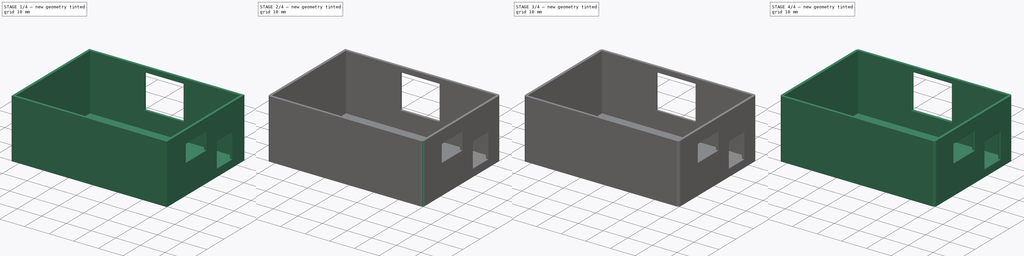
[diagram: build sequence overview — one tinted view per stage of 4, left to right]
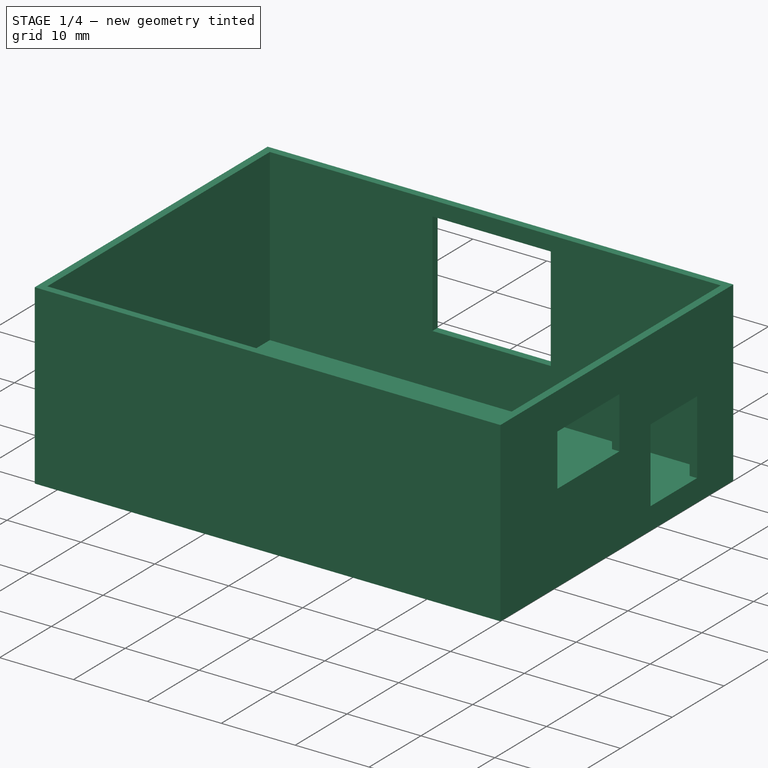
[diagram: stage 1 of 4 — iso view after this stage's code; geometry added in this stage tinted green]
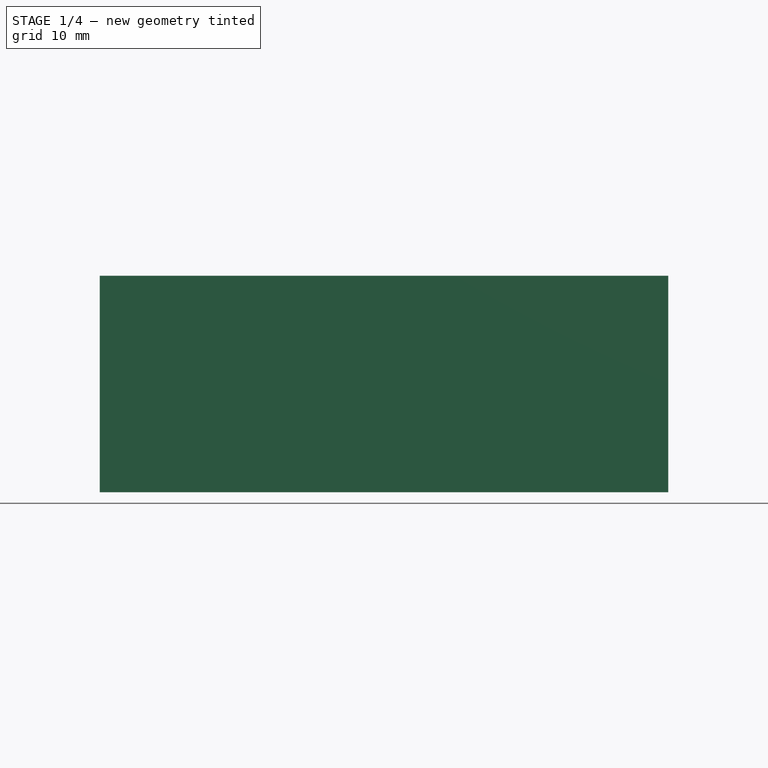
[diagram: stage 1 of 4 — front view after this stage's code; geometry added in this stage tinted green]
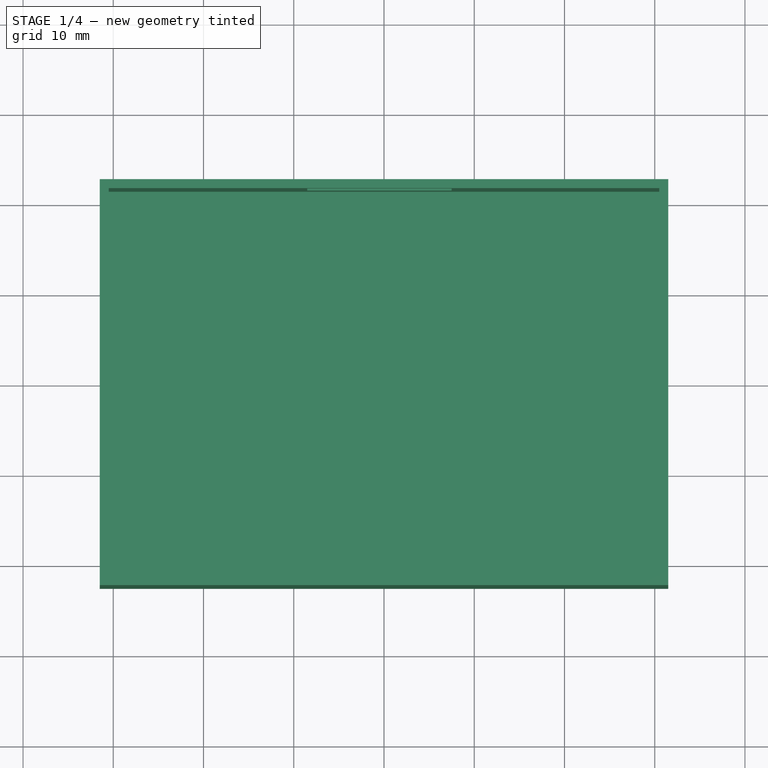
[diagram: stage 1 of 4 — top view after this stage's code; geometry added in this stage tinted green]
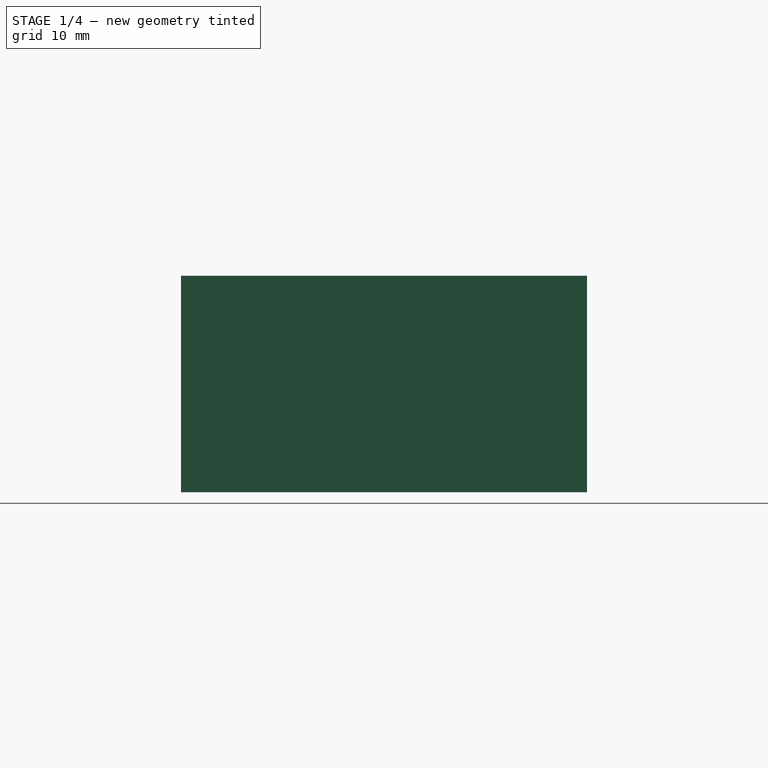
[diagram: stage 1 of 4 — right view after this stage's code; geometry added in this stage tinted green]
FCSTD DOCUMENT  (FreeCAD 0.19R24291 (Git))
Label: trigger2pulse_box
License: All rights reserved
LicenseURL: http://en.wikipedia.org/wiki/All_rights_reserved
objects: PartDesign::Fillet×10, Sketcher::SketchObject×4, PartDesign::Pocket×3, PartDesign::Pad×1, PartDesign::Body×1
note: 33 computed .brp shape members not serialized (recipe doc carries the construction recipe); baked Part::Feature solids carry a one-line shape summary decoded from their .brp

FEATURE [Sketcher::SketchObject] Sketch
  FullyConstrained = true
  MapMode = 5
  Support = -> [XY_Plane]
  sketch-geometry (4):
    g0: LineSegment StartX=-31.5 StartY=22.5 StartZ=0 EndX=31.5 EndY=22.5 EndZ=0
    g1: LineSegment StartX=31.5 StartY=22.5 StartZ=0 EndX=31.5 EndY=-22.5 EndZ=0
    g2: LineSegment StartX=31.5 StartY=-22.5 StartZ=0 EndX=-31.5 EndY=-22.5 EndZ=0
    g3: LineSegment StartX=-31.5 StartY=-22.5 StartZ=0 EndX=-31.5 EndY=22.5 EndZ=0
  constraints (10):
    c: Coincident(g0,g1)
    c: Coincident(g1,g2)
    c: Coincident(g2,g3)
    c: Coincident(g3,g0)
    c: Horizontal(g0)
    c: Vertical(g3)
    c: DistanceY(g1,g1) = 45
    c: DistanceX(g2,g2) = 63
    c: Symmetric(g1,g2,g-2)
    c: Symmetric(g0,g1,g-1)
FEATURE [PartDesign::Pad] Pad
  Direction = (1,1,1)
  Length = 24
  Length2 = 100
  Profile = -> Sketch
  Refine = true
  Type = 0
FEATURE [Sketcher::SketchObject] Sketch001
  AttachmentOffset = pos=(0,0,24) rot=(0,0,1;0rad)
  FullyConstrained = true
  MapMode = 5
  Placement = pos=(0,0,24) rot=(0,0,1;0rad)
  Support = -> [XY_Plane]
  sketch-geometry (4):
    g0: LineSegment StartX=-30.5 StartY=21.5 StartZ=0 EndX=30.5 EndY=21.5 EndZ=0
    g1: LineSegment StartX=30.5 StartY=21.5 StartZ=0 EndX=30.5 EndY=-21.5 EndZ=0
    g2: LineSegment StartX=30.5 StartY=-21.5 StartZ=0 EndX=-30.5 EndY=-21.5 EndZ=0
    g3: LineSegment StartX=-30.5 StartY=-21.5 StartZ=0 EndX=-30.5 EndY=21.5 EndZ=0
  constraints (10):
    c: Coincident(g0,g1)
    c: Coincident(g1,g2)
    c: Coincident(g2,g3)
    c: Coincident(g3,g0)
    c: Horizontal(g2)
    c: Vertical(g3)
    c: DistanceY(g1,g1) = 43
    c: DistanceX(g0,g0) = 61
    c: Symmetric(g0,g0,g-2)
    c: Symmetric(g0,g1,g-1)
FEATURE [PartDesign::Pocket] Pocket
  BaseFeature = -> Pad
  Length = 23
  Length2 = 100
  Profile = -> Sketch001
  Refine = true
  Type = 0
FEATURE [Sketcher::SketchObject] Sketch002
  AttachmentOffset = pos=(0,0,30) rot=(0,0,1;0rad)
  ExternalGeometry = -> [Pocket]
  FullyConstrained = true
  MapMode = 5
  Placement = pos=(30,-6.7e-15,6.7e-15) rot=(0.57735,0.57735,0.57735;2.0944rad)
  Support = -> [YZ_Plane]
  sketch-geometry (8):
    g0: LineSegment StartX=-11.5 StartY=19 StartZ=0 EndX=0.5 EndY=19 EndZ=0
    g1: LineSegment StartX=0.5 StartY=19 StartZ=0 EndX=0.5 EndY=12 EndZ=0
    g2: LineSegment StartX=0.5 StartY=12 StartZ=0 EndX=-11.5 EndY=12 EndZ=0
    g3: LineSegment StartX=-11.5 StartY=12 StartZ=0 EndX=-11.5 EndY=19 EndZ=0
    g4: LineSegment StartX=6.5 StartY=13 StartZ=0 EndX=15.5 EndY=13 EndZ=0
    g5: LineSegment StartX=15.5 StartY=13 StartZ=0 EndX=15.5 EndY=3 EndZ=0
    g6: LineSegment StartX=15.5 StartY=3 StartZ=0 EndX=6.5 EndY=3 EndZ=0
    g7: LineSegment StartX=6.5 StartY=3 StartZ=0 EndX=6.5 EndY=13 EndZ=0
  constraints (24):
    c: Coincident(g0,g1)
    c: Coincident(g1,g2)
    c: Coincident(g2,g3)
    c: Coincident(g3,g0)
    c: Horizontal(g0)
    c: Horizontal(g2)
    c: Vertical(g1)
    c: Vertical(g3)
    c: Coincident(g4,g5)
    c: Coincident(g5,g6)
    c: Coincident(g6,g7)
    c: Coincident(g7,g4)
    c: Horizontal(g4)
    c: Horizontal(g6)
    c: Vertical(g5)
    c: Vertical(g7)
    c: DistanceX(g6,g6) = 9
    c: DistanceY(g5,g5) = 10
    c: DistanceY(g3,g3) = 7
    c: DistanceX(g2,g2) = 12
    c: DistanceX(g4,g-3) = 6
    c: DistanceX(g-4,g2) = 10
    c: DistanceY(g6,g1) = 9
    c: DistanceY(g-3,g6) = 2
FEATURE [PartDesign::Pocket] Pocket001
  BaseFeature = -> Pocket
  Length = 5
  Length2 = 100
  Midplane = true
  Profile = -> Sketch002
  Refine = true
  Type = 0
FEATURE [Sketcher::SketchObject] Sketch003
  AttachmentOffset = pos=(0,0,-23) rot=(0,0,1;0rad)
  ExternalGeometry = -> [Pocket001]
  FullyConstrained = true
  MapMode = 5
  Placement = pos=(0,23,-5.1e-15) rot=(1,0,0;1.5708rad)
  Support = -> [XZ_Plane]
  sketch-geometry (4):
    g0: LineSegment StartX=-8.5 StartY=22 StartZ=0 EndX=7.5 EndY=22 EndZ=0
    g1: LineSegment StartX=7.5 StartY=22 StartZ=0 EndX=7.5 EndY=8 EndZ=0
    g2: LineSegment StartX=7.5 StartY=8 StartZ=0 EndX=-8.5 EndY=8 EndZ=0
    g3: LineSegment StartX=-8.5 StartY=8 StartZ=0 EndX=-8.5 EndY=22 EndZ=0
  constraints (12):
    c: Coincident(g0,g1)
    c: Coincident(g1,g2)
    c: Coincident(g2,g3)
    c: Coincident(g3,g0)
    c: Horizontal(g0)
    c: Horizontal(g2)
    c: Vertical(g1)
    c: Vertical(g3)
    c: DistanceY(g1,g1) = 14
    c: DistanceX(g0,g-3) = 23
    c: DistanceY(g-5,g1) = 5
    c: DistanceX(g0,g0) = 16
FEATURE [PartDesign::Pocket] Pocket002
  BaseFeature = -> Pocket001
  Length = 5
  Length2 = 100
  Midplane = true
  Profile = -> Sketch003
  Refine = true
  Type = 0
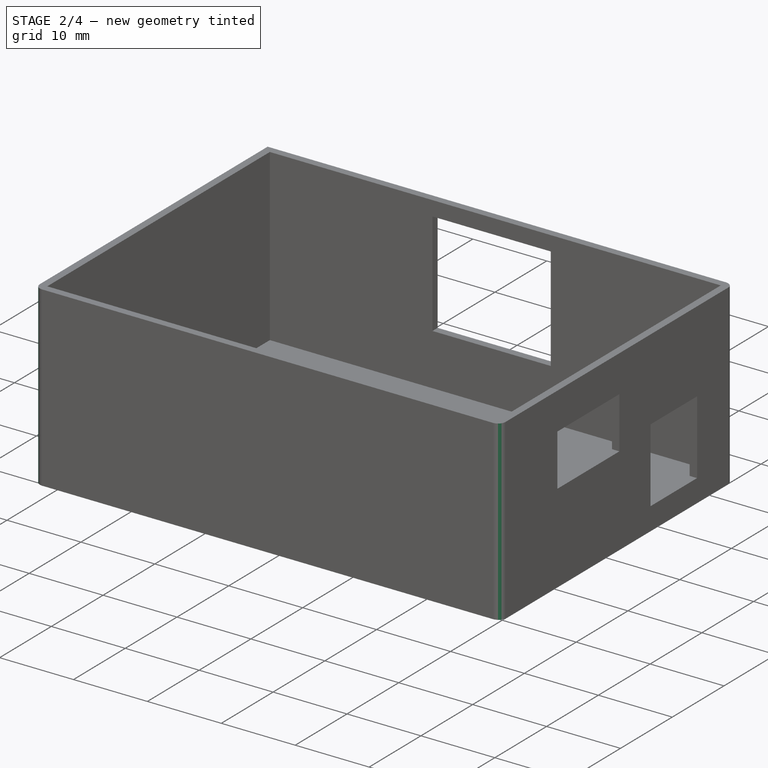
[diagram: stage 2 of 4 — iso view after this stage's code; geometry added in this stage tinted green]
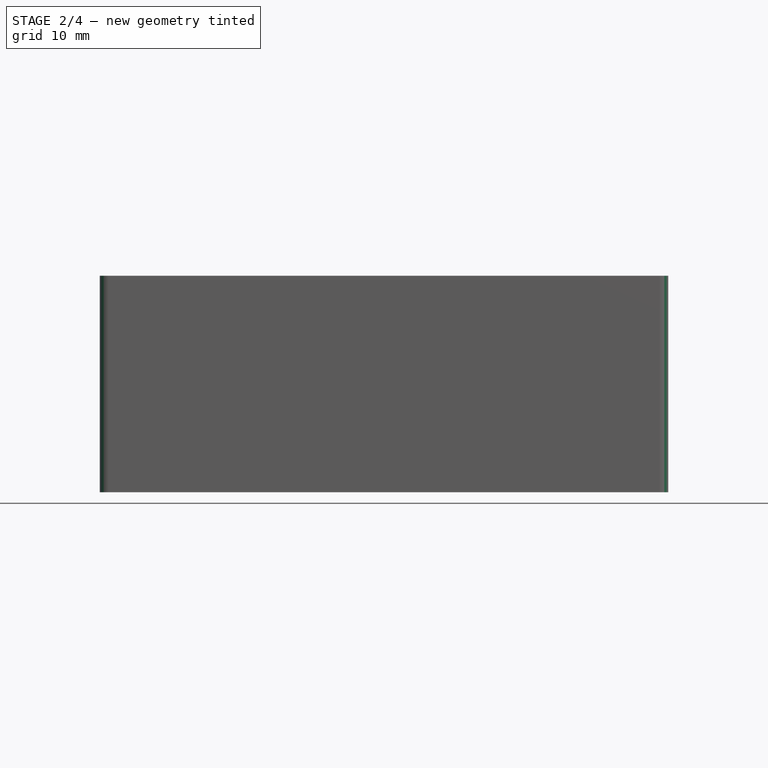
[diagram: stage 2 of 4 — front view after this stage's code; geometry added in this stage tinted green]
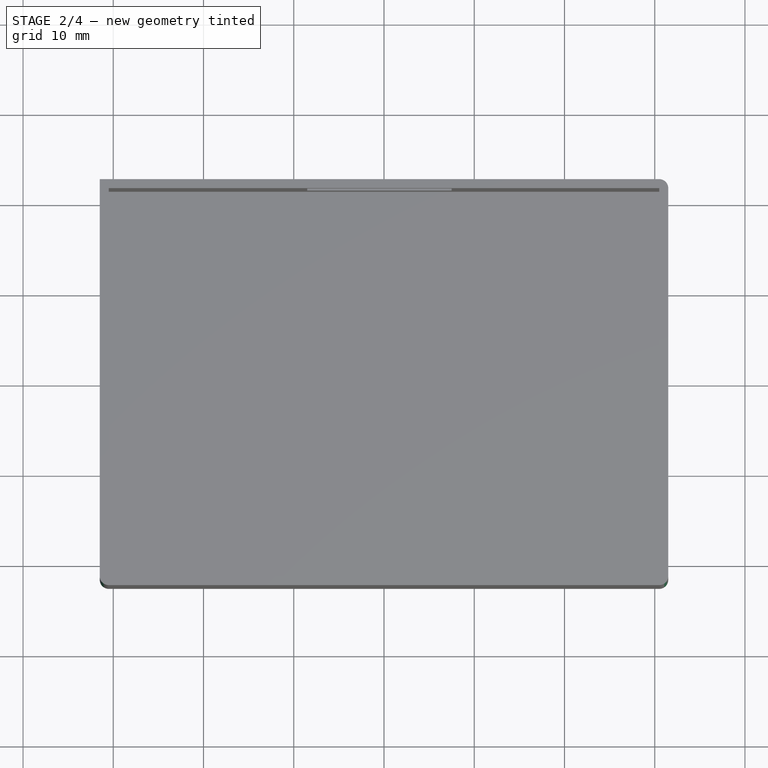
[diagram: stage 2 of 4 — top view after this stage's code; geometry added in this stage tinted green]
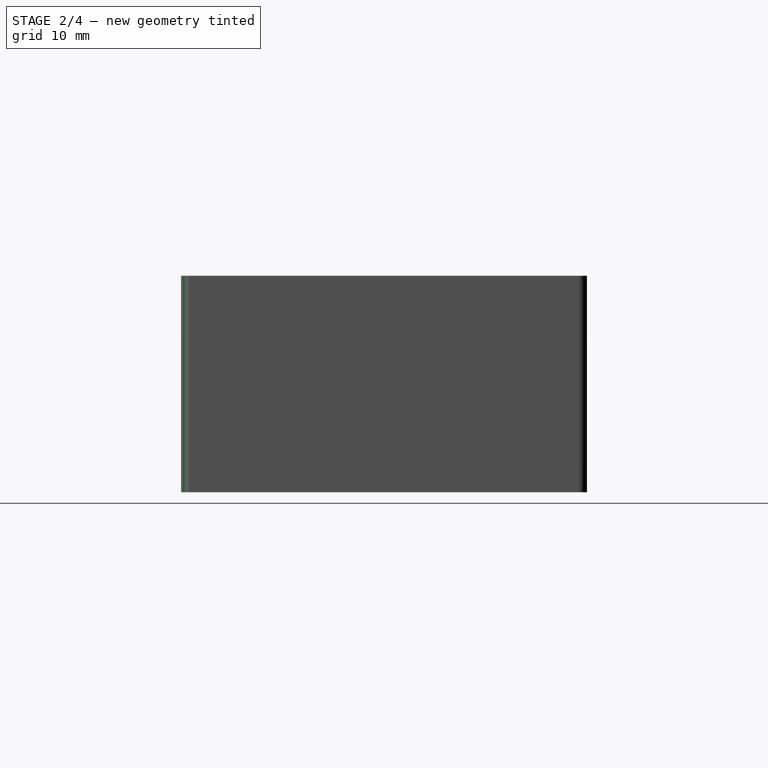
[diagram: stage 2 of 4 — right view after this stage's code; geometry added in this stage tinted green]
FEATURE [PartDesign::Fillet] Fillet
  Base = -> Pocket002 [Edge4]
  BaseFeature = -> Pocket002
  Radius = 1
  Refine = true
  SupportTransform = false
FEATURE [PartDesign::Fillet] Fillet001
  Base = -> Fillet [Edge31]
  BaseFeature = -> Fillet
  Radius = 1
  Refine = true
  SupportTransform = false
FEATURE [PartDesign::Fillet] Fillet002
  Base = -> Fillet001 [Edge22]
  BaseFeature = -> Fillet001
  Radius = 1
  Refine = true
  SupportTransform = false
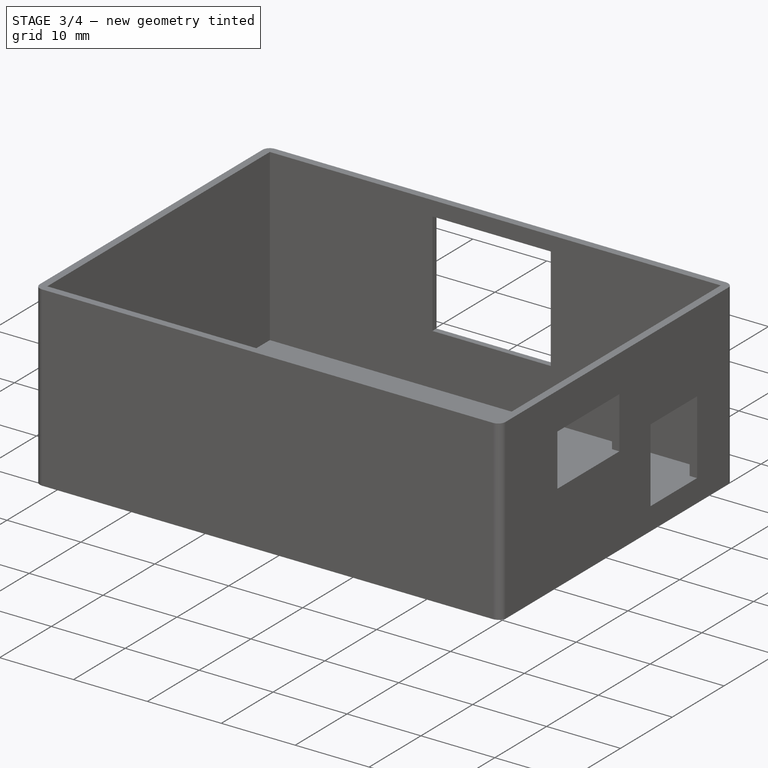
[diagram: stage 3 of 4 — iso view after this stage's code; geometry added in this stage tinted green]
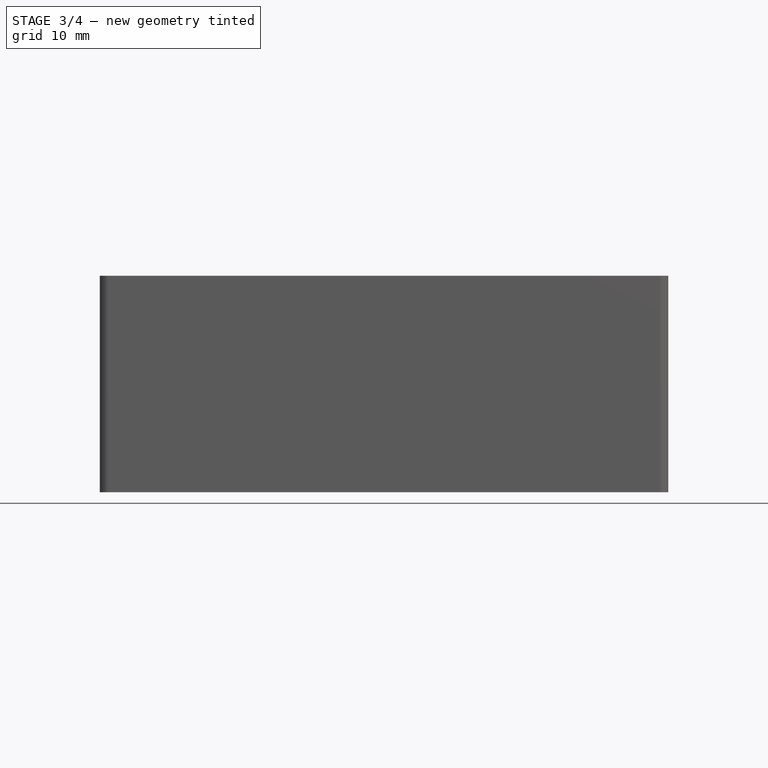
[diagram: stage 3 of 4 — front view after this stage's code; geometry added in this stage tinted green]
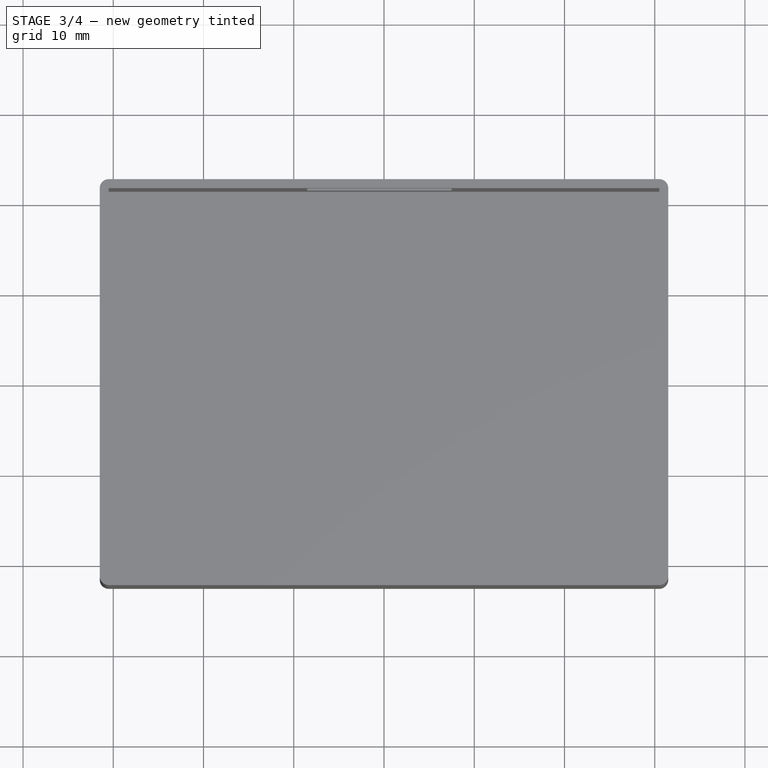
[diagram: stage 3 of 4 — top view after this stage's code; geometry added in this stage tinted green]
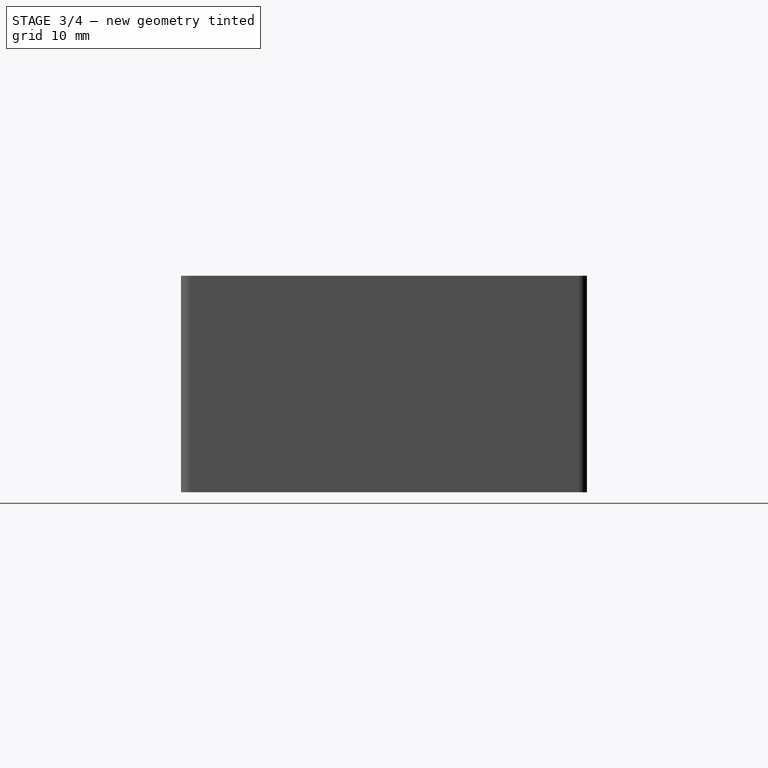
[diagram: stage 3 of 4 — right view after this stage's code; geometry added in this stage tinted green]
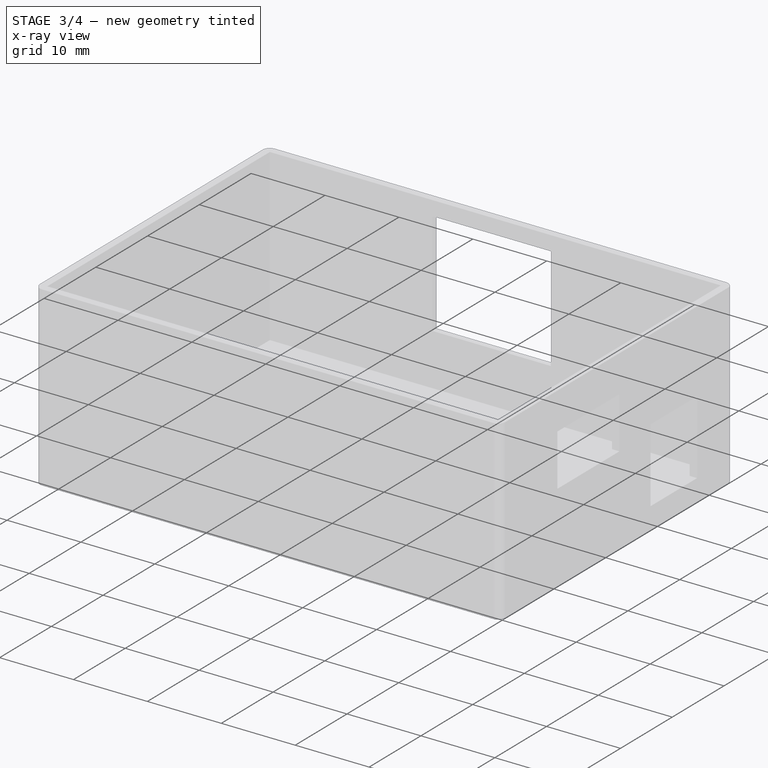
[diagram: stage 3 of 4 — x-ray composite at the iso view; earlier geometry ghosted, this stage's added geometry solid]
FEATURE [PartDesign::Fillet] Fillet003
  Base = -> Fillet002 [Edge15]
  BaseFeature = -> Fillet002
  Radius = 1
  Refine = true
  SupportTransform = false
FEATURE [PartDesign::Fillet] Fillet004
  Base = -> Fillet003 [Edge19]
  BaseFeature = -> Fillet003
  Radius = 0.3
  Refine = true
  SupportTransform = false
FEATURE [PartDesign::Fillet] Fillet005
  Base = -> Fillet004 [Edge6,Edge2]
  BaseFeature = -> Fillet004
  Radius = 0.3
  Refine = true
  SupportTransform = false
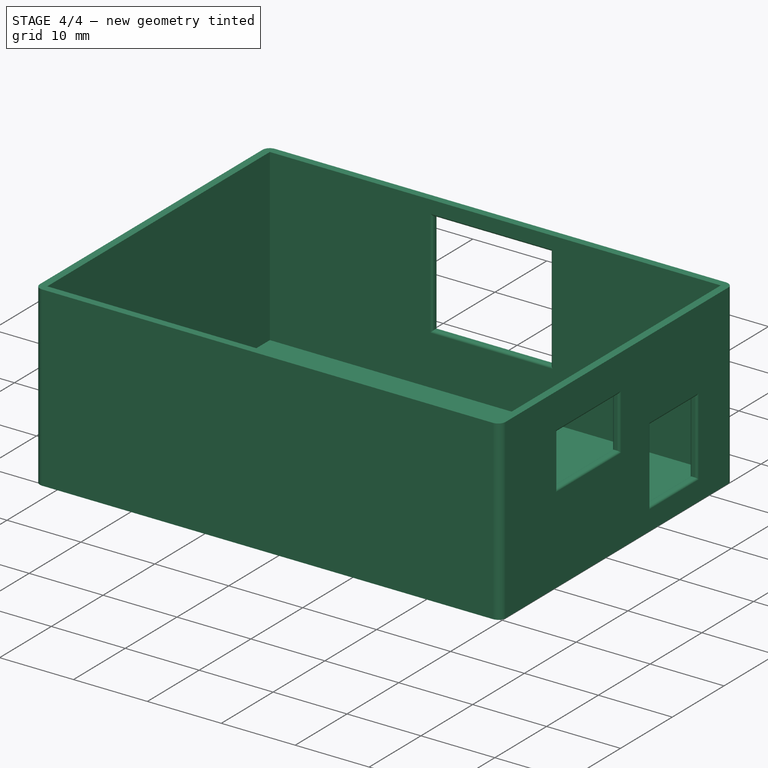
[diagram: stage 4 of 4 — iso view after this stage's code; geometry added in this stage tinted green]
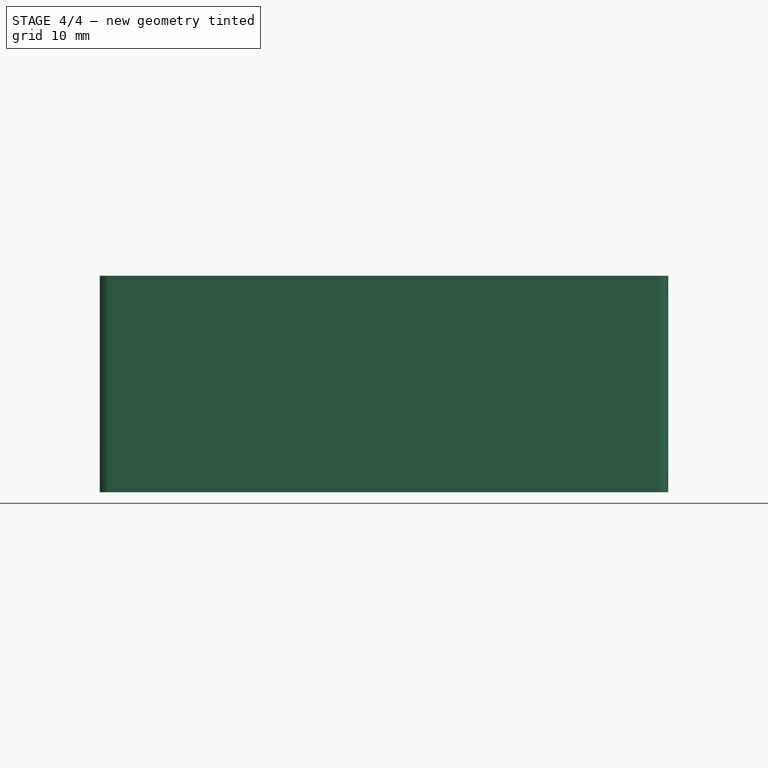
[diagram: stage 4 of 4 — front view after this stage's code; geometry added in this stage tinted green]
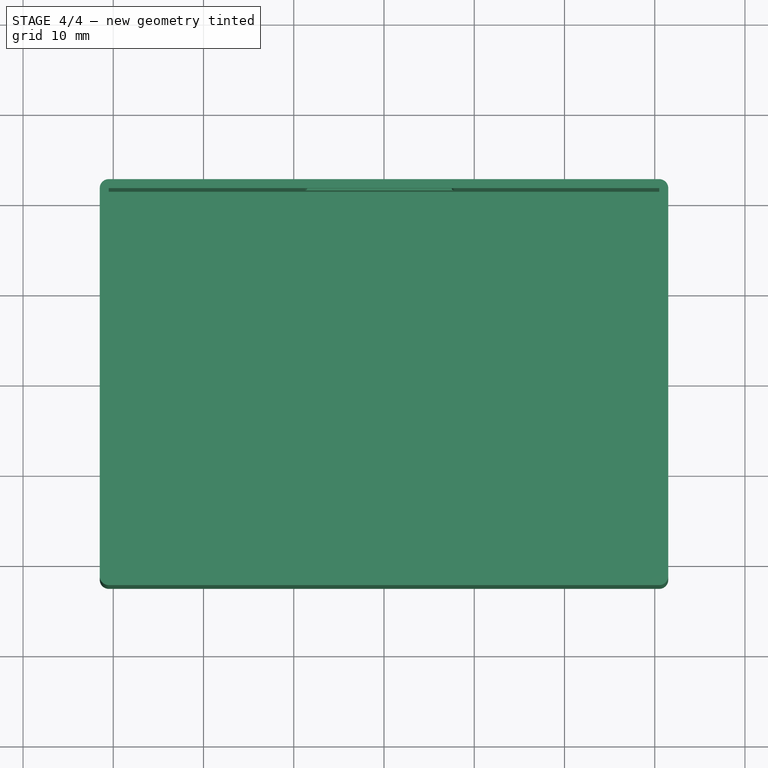
[diagram: stage 4 of 4 — top view after this stage's code; geometry added in this stage tinted green]
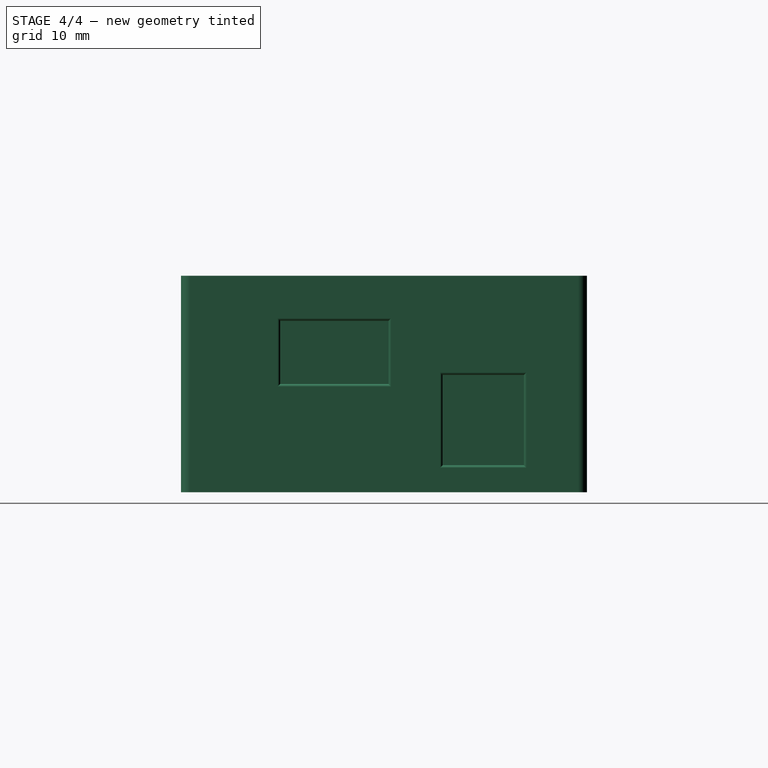
[diagram: stage 4 of 4 — right view after this stage's code; geometry added in this stage tinted green]
FEATURE [PartDesign::Fillet] Fillet006
  Base = -> Fillet005 [Edge3]
  BaseFeature = -> Fillet005
  Radius = 0.3
  Refine = true
  SupportTransform = false
FEATURE [PartDesign::Fillet] Fillet007
  Base = -> Fillet006 [Edge56,Edge55,Edge58,Edge57,Edge52,Edge53,Edge54,Edge51]
  BaseFeature = -> Fillet006
  Radius = 0.3
  Refine = true
  SupportTransform = false
FEATURE [PartDesign::Fillet] Fillet008
  Base = -> Fillet007 [Edge73,Edge71,Edge70,Edge72]
  BaseFeature = -> Fillet007
  Radius = 0.3
  Refine = true
  SupportTransform = false
FEATURE [PartDesign::Fillet] Fillet009
  Base = -> Fillet008 [Edge34,Edge35,Edge36,Edge33,Edge38,Edge39,Edge40,Edge37]
  BaseFeature = -> Fillet008
  Radius = 0.3
  Refine = true
  SupportTransform = false
FEATURE [PartDesign::Body] Body
  Group = -> [Sketch,Pad,Sketch001,Pocket,Sketch002,Pocket001,Sketch003,Pocket002,Fillet,Fillet001,Fillet002,Fillet003,Fillet004,Fillet005,Fillet006,Fillet007,Fillet008,Fillet009]
  Origin = -> Origin
  Tip = -> Fillet009
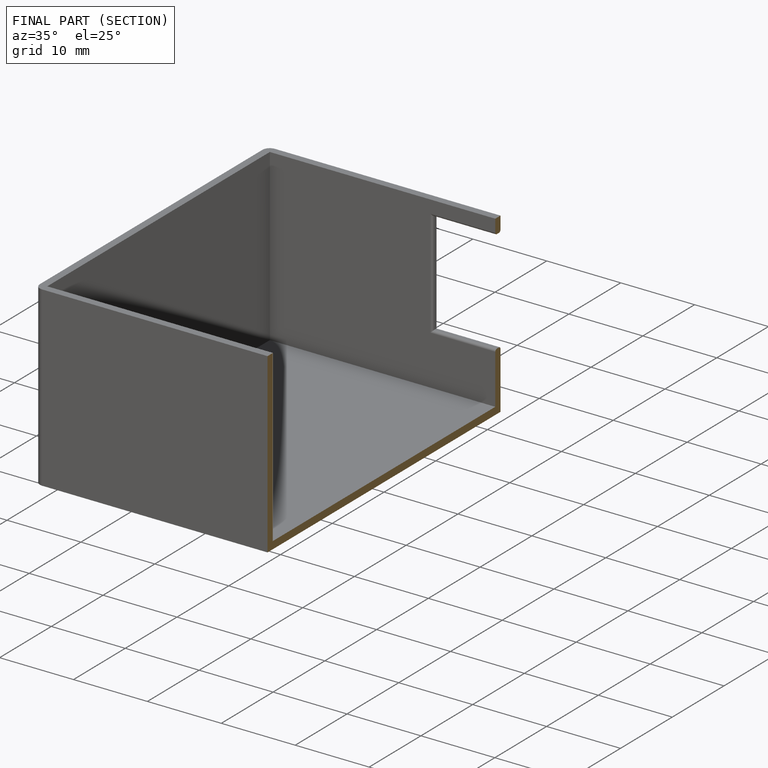
[diagram: finished part — half-section view (interior)]
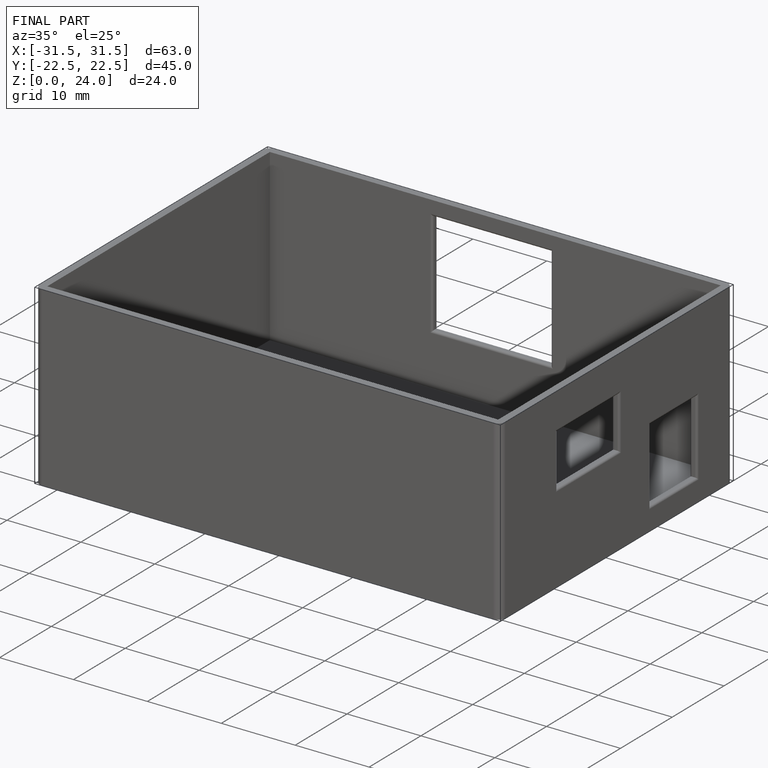
[diagram: finished part — iso view with bounding-box wireframe]
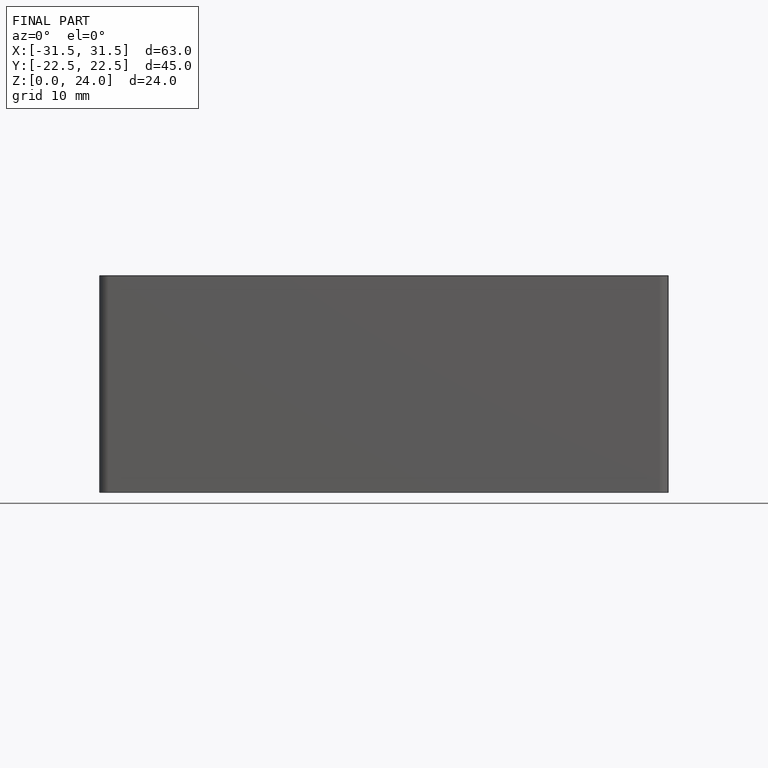
[diagram: finished part — front view with bounding-box wireframe]
